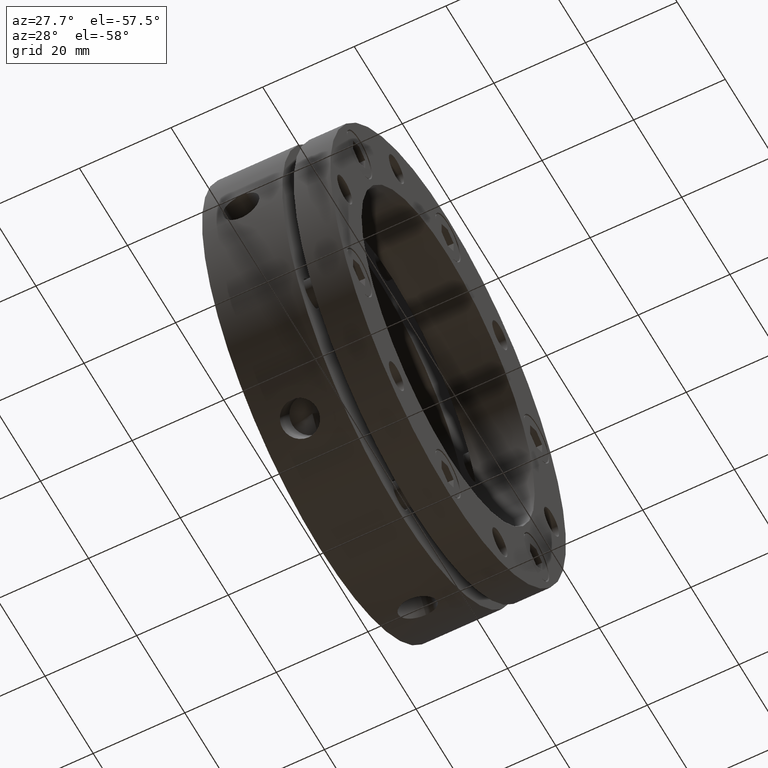
[diagram: clean part render]
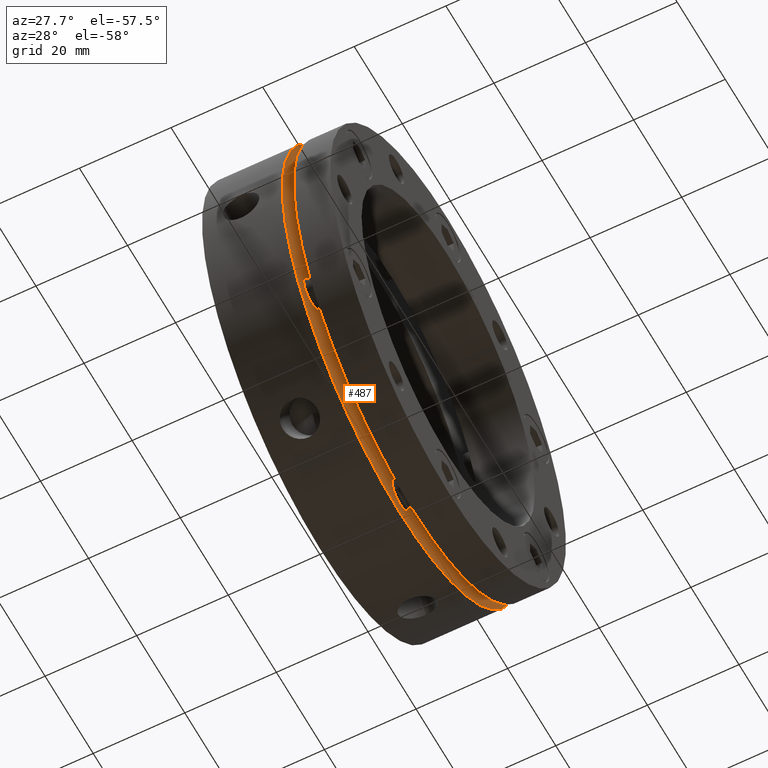
[diagram: same view with one face highlighted and labeled with its STEP entity id]
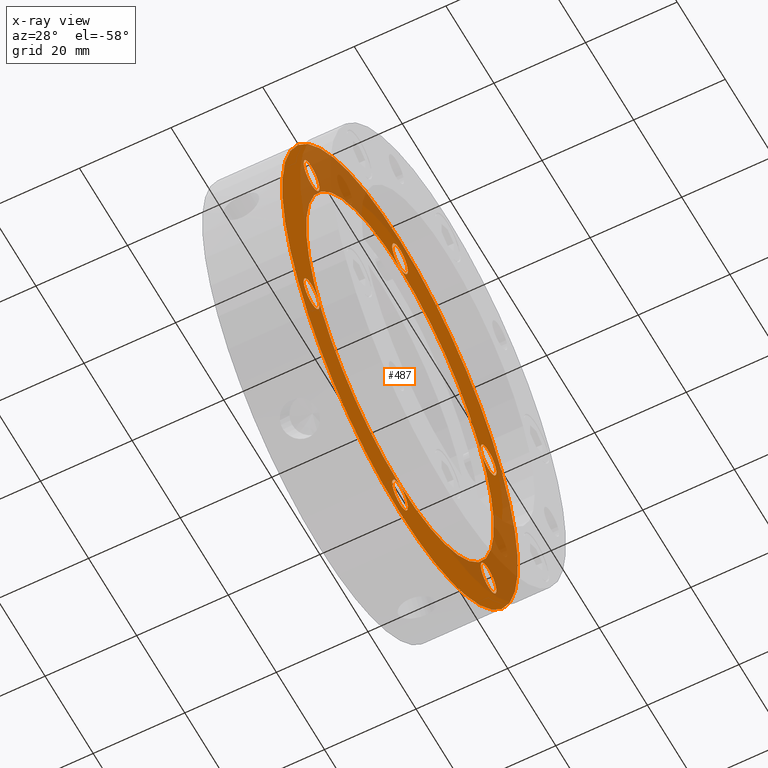
[diagram: x-ray of the same camera — body ghosted, the highlighted face saturated]
A machine part, auxiliary view. The second image highlights one B-rep face of the part: STEP entity #487.
The next image is the same camera in x-ray: the body ghosted, the highlighted face saturated — about 33% of this face is hidden behind the body in this view.
In plain terms, the highlighted planar face has unit normal (-1, 0, 0).
Its self-contained STEP definition (entity closure, byte-faithful):
#131 = VERTEX_POINT ( 'NONE', #2060 ) ;
#133 = VERTEX_POINT ( 'NONE', #2062 ) ;
#487 = ADVANCED_FACE ( 'NONE', ( #3110, #3118, #3114, #3112, #3116, #3119, #3120, #3121 ), #2402, .F. ) ;
#551 = EDGE_CURVE ( 'NONE', #816, #815, #3222, .T. ) ;
#552 = EDGE_CURVE ( 'NONE', #812, #811, #3223, .T. ) ;
#553 = EDGE_CURVE ( 'NONE', #808, #807, #3224, .T. ) ;
#554 = EDGE_CURVE ( 'NONE', #804, #803, #3225, .T. ) ;
#555 = EDGE_CURVE ( 'NONE', #800, #799, #3226, .T. ) ;
#556 = EDGE_CURVE ( 'NONE', #796, #795, #3227, .T. ) ;
#557 = EDGE_CURVE ( 'NONE', #792, #791, #3228, .T. ) ;
#571 = EDGE_CURVE ( 'NONE', #133, #131, #3242, .T. ) ;
#614 = EDGE_CURVE ( 'NONE', #131, #133, #3299, .T. ) ;
#679 = EDGE_CURVE ( 'NONE', #791, #792, #3401, .T. ) ;
#683 = EDGE_CURVE ( 'NONE', #795, #796, #3400, .T. ) ;
#687 = EDGE_CURVE ( 'NONE', #799, #800, #3407, .T. ) ;
#691 = EDGE_CURVE ( 'NONE', #803, #804, #3413, .T. ) ;
#695 = EDGE_CURVE ( 'NONE', #807, #808, #3419, .T. ) ;
#699 = EDGE_CURVE ( 'NONE', #811, #812, #3425, .T. ) ;
#703 = EDGE_CURVE ( 'NONE', #815, #816, #3431, .T. ) ;
#791 = VERTEX_POINT ( 'NONE', #4116 ) ;
#792 = VERTEX_POINT ( 'NONE', #4128 ) ;
#795 = VERTEX_POINT ( 'NONE', #4131 ) ;
#796 = VERTEX_POINT ( 'NONE', #4132 ) ;
#799 = VERTEX_POINT ( 'NONE', #4135 ) ;
#800 = VERTEX_POINT ( 'NONE', #4136 ) ;
#803 = VERTEX_POINT ( 'NONE', #4139 ) ;
#804 = VERTEX_POINT ( 'NONE', #4140 ) ;
#807 = VERTEX_POINT ( 'NONE', #4143 ) ;
#808 = VERTEX_POINT ( 'NONE', #4144 ) ;
#811 = VERTEX_POINT ( 'NONE', #4147 ) ;
#812 = VERTEX_POINT ( 'NONE', #4148 ) ;
#815 = VERTEX_POINT ( 'NONE', #4151 ) ;
#816 = VERTEX_POINT ( 'NONE', #4152 ) ;
#1307 = EDGE_LOOP ( 'NONE', ( #1615, #1616 ) ) ;
#1308 = EDGE_LOOP ( 'NONE', ( #1609, #1610 ) ) ;
#1320 = EDGE_LOOP ( 'NONE', ( #1611, #1612 ) ) ;
#1321 = EDGE_LOOP ( 'NONE', ( #1613, #1614 ) ) ;
#1328 = EDGE_LOOP ( 'NONE', ( #1617, #1618 ) ) ;
#1329 = EDGE_LOOP ( 'NONE', ( #1619, #1620 ) ) ;
#1330 = EDGE_LOOP ( 'NONE', ( #1621, #1622 ) ) ;
#1331 = EDGE_LOOP ( 'NONE', ( #1623, #1624 ) ) ;
#1609 = ORIENTED_EDGE ( 'NONE', *, *, #557, .F. ) ;
#1610 = ORIENTED_EDGE ( 'NONE', *, *, #679, .F. ) ;
#1611 = ORIENTED_EDGE ( 'NONE', *, *, #556, .F. ) ;
#1612 = ORIENTED_EDGE ( 'NONE', *, *, #683, .F. ) ;
#1613 = ORIENTED_EDGE ( 'NONE', *, *, #555, .F. ) ;
#1614 = ORIENTED_EDGE ( 'NONE', *, *, #687, .F. ) ;
#1615 = ORIENTED_EDGE ( 'NONE', *, *, #554, .F. ) ;
#1616 = ORIENTED_EDGE ( 'NONE', *, *, #691, .F. ) ;
#1617 = ORIENTED_EDGE ( 'NONE', *, *, #553, .F. ) ;
#1618 = ORIENTED_EDGE ( 'NONE', *, *, #695, .F. ) ;
#1619 = ORIENTED_EDGE ( 'NONE', *, *, #552, .F. ) ;
#1620 = ORIENTED_EDGE ( 'NONE', *, *, #699, .F. ) ;
#1621 = ORIENTED_EDGE ( 'NONE', *, *, #551, .F. ) ;
#1622 = ORIENTED_EDGE ( 'NONE', *, *, #703, .F. ) ;
#1623 = ORIENTED_EDGE ( 'NONE', *, *, #571, .F. ) ;
#1624 = ORIENTED_EDGE ( 'NONE', *, *, #614, .F. ) ;
#2060 = CARTESIAN_POINT ( 'NONE',  ( 17.49999999999999600, 6.000769315822030900E-015, 49.00000000000000000 ) ) ;
#2062 = CARTESIAN_POINT ( 'NONE',  ( 17.49999999999999600, 0.0000000000000000000, -49.00000000000000000 ) ) ;
#2398 = DIRECTION ( 'NONE',  ( -1.000000000000000000, 0.0000000000000000000, 0.0000000000000000000 ) ) ;
#2400 = CARTESIAN_POINT ( 'NONE',  ( 17.49999999999999600, 44.00000000000000000, 0.0000000000000000000 ) ) ;
#2402 = PLANE ( 'NONE',  #4614 ) ;
#2404 = DIRECTION ( 'NONE',  ( 0.0000000000000000000, 0.0000000000000000000, 1.000000000000000000 ) ) ;
#2595 = CARTESIAN_POINT ( 'NONE',  ( 17.49999999999999600, 36.80607966083869100, 21.24999999999998900 ) ) ;
#2596 = DIRECTION ( 'NONE',  ( 1.000000000000000000, 0.0000000000000000000, 0.0000000000000000000 ) ) ;
#2597 = DIRECTION ( 'NONE',  ( 0.0000000000000000000, 0.0000000000000000000, -1.000000000000000000 ) ) ;
#2598 = CARTESIAN_POINT ( 'NONE',  ( 17.49999999999999600, 36.80607966083865500, -21.25000000000003200 ) ) ;
#2599 = DIRECTION ( 'NONE',  ( 1.000000000000000000, 0.0000000000000000000, 0.0000000000000000000 ) ) ;
#2600 = DIRECTION ( 'NONE',  ( 0.0000000000000000000, 0.0000000000000000000, -1.000000000000000000 ) ) ;
#2601 = CARTESIAN_POINT ( 'NONE',  ( 17.49999999999999600, -6.661337999999999900E-015, -42.50000000000003600 ) ) ;
#2602 = DIRECTION ( 'NONE',  ( 1.000000000000000000, 0.0000000000000000000, 0.0000000000000000000 ) ) ;
#2603 = DIRECTION ( 'NONE',  ( 0.0000000000000000000, 0.0000000000000000000, -1.000000000000000000 ) ) ;
#2604 = CARTESIAN_POINT ( 'NONE',  ( 17.49999999999999600, -36.80607966083868400, -21.25000000000000700 ) ) ;
#2605 = DIRECTION ( 'NONE',  ( 1.000000000000000000, 0.0000000000000000000, 0.0000000000000000000 ) ) ;
#2606 = DIRECTION ( 'NONE',  ( 0.0000000000000000000, 0.0000000000000000000, -1.000000000000000000 ) ) ;
#2607 = CARTESIAN_POINT ( 'NONE',  ( 17.49999999999999600, -36.80607966083866200, 21.25000000000001800 ) ) ;
#2608 = DIRECTION ( 'NONE',  ( 1.000000000000000000, 0.0000000000000000000, 0.0000000000000000000 ) ) ;
#2609 = DIRECTION ( 'NONE',  ( 0.0000000000000000000, 0.0000000000000000000, -1.000000000000000000 ) ) ;
#2611 = CARTESIAN_POINT ( 'NONE',  ( 17.49999999999999600, 0.0000000000000000000, 42.50000000000002800 ) ) ;
#2612 = DIRECTION ( 'NONE',  ( 1.000000000000000000, 0.0000000000000000000, 0.0000000000000000000 ) ) ;
#2613 = DIRECTION ( 'NONE',  ( 0.0000000000000000000, 0.0000000000000000000, -1.000000000000000000 ) ) ;
#2615 = CARTESIAN_POINT ( 'NONE',  ( 17.49999999999999600, 0.0000000000000000000, 0.0000000000000000000 ) ) ;
#2616 = DIRECTION ( 'NONE',  ( 1.000000000000000000, -0.0000000000000000000, -0.0000000000000000000 ) ) ;
#2617 = DIRECTION ( 'NONE',  ( 0.0000000000000000000, 0.0000000000000000000, 1.000000000000000000 ) ) ;
#2659 = CARTESIAN_POINT ( 'NONE',  ( 17.49999999999999600, 0.0000000000000000000, 0.0000000000000000000 ) ) ;
#2660 = DIRECTION ( 'NONE',  ( -1.000000000000000000, -0.0000000000000000000, -0.0000000000000000000 ) ) ;
#2661 = DIRECTION ( 'NONE',  ( 0.0000000000000000000, 0.0000000000000000000, -1.000000000000000000 ) ) ;
#3110 = FACE_BOUND ( 'NONE', #1308, .T. ) ;
#3112 = FACE_BOUND ( 'NONE', #1307, .T. ) ;
#3114 = FACE_BOUND ( 'NONE', #1321, .T. ) ;
#3116 = FACE_BOUND ( 'NONE', #1328, .T. ) ;
#3118 = FACE_BOUND ( 'NONE', #1320, .T. ) ;
#3119 = FACE_BOUND ( 'NONE', #1329, .T. ) ;
#3120 = FACE_BOUND ( 'NONE', #1330, .T. ) ;
#3121 = FACE_OUTER_BOUND ( 'NONE', #1331, .T. ) ;
#3222 = CIRCLE ( 'NONE', #4674, 3.249999999999999600 ) ;
#3223 = CIRCLE ( 'NONE', #4675, 3.249999999999999600 ) ;
#3224 = CIRCLE ( 'NONE', #4676, 3.250000000000002700 ) ;
#3225 = CIRCLE ( 'NONE', #4677, 3.249999999999999600 ) ;
#3226 = CIRCLE ( 'NONE', #4678, 3.249999999999999600 ) ;
#3227 = CIRCLE ( 'NONE', #4679, 3.250000000000002700 ) ;
#3228 = CIRCLE ( 'NONE', #4680, 39.00000000000000700 ) ;
#3242 = CIRCLE ( 'NONE', #4694, 49.00000000000000000 ) ;
#3299 = CIRCLE ( 'NONE', #4705, 49.00000000000000000 ) ;
#3400 = CIRCLE ( 'NONE', #4729, 3.250000000000002700 ) ;
#3401 = CIRCLE ( 'NONE', #4727, 39.00000000000000700 ) ;
#3407 = CIRCLE ( 'NONE', #4731, 3.249999999999999600 ) ;
#3413 = CIRCLE ( 'NONE', #4733, 3.249999999999999600 ) ;
#3419 = CIRCLE ( 'NONE', #4735, 3.250000000000002700 ) ;
#3425 = CIRCLE ( 'NONE', #4737, 3.249999999999999600 ) ;
#3431 = CIRCLE ( 'NONE', #4739, 3.249999999999999600 ) ;
#3745 = CARTESIAN_POINT ( 'NONE',  ( 17.49999999999999600, 0.0000000000000000000, 0.0000000000000000000 ) ) ;
#3746 = DIRECTION ( 'NONE',  ( -1.000000000000000000, -0.0000000000000000000, -0.0000000000000000000 ) ) ;
#3747 = DIRECTION ( 'NONE',  ( 0.0000000000000000000, 0.0000000000000000000, -1.000000000000000000 ) ) ;
#3994 = CARTESIAN_POINT ( 'NONE',  ( 17.49999999999999600, 0.0000000000000000000, 0.0000000000000000000 ) ) ;
#3995 = DIRECTION ( 'NONE',  ( 1.000000000000000000, -0.0000000000000000000, -0.0000000000000000000 ) ) ;
#3996 = DIRECTION ( 'NONE',  ( 0.0000000000000000000, 0.0000000000000000000, 1.000000000000000000 ) ) ;
#4004 = CARTESIAN_POINT ( 'NONE',  ( 17.49999999999999600, 0.0000000000000000000, 42.50000000000002800 ) ) ;
#4005 = DIRECTION ( 'NONE',  ( 1.000000000000000000, 0.0000000000000000000, 0.0000000000000000000 ) ) ;
#4006 = DIRECTION ( 'NONE',  ( 0.0000000000000000000, 0.0000000000000000000, -1.000000000000000000 ) ) ;
#4014 = CARTESIAN_POINT ( 'NONE',  ( 17.49999999999999600, -36.80607966083866200, 21.25000000000001800 ) ) ;
#4015 = DIRECTION ( 'NONE',  ( 1.000000000000000000, 0.0000000000000000000, 0.0000000000000000000 ) ) ;
#4016 = DIRECTION ( 'NONE',  ( 0.0000000000000000000, 0.0000000000000000000, -1.000000000000000000 ) ) ;
#4024 = CARTESIAN_POINT ( 'NONE',  ( 17.49999999999999600, -36.80607966083868400, -21.25000000000000700 ) ) ;
#4025 = DIRECTION ( 'NONE',  ( 1.000000000000000000, 0.0000000000000000000, 0.0000000000000000000 ) ) ;
#4026 = DIRECTION ( 'NONE',  ( 0.0000000000000000000, 0.0000000000000000000, -1.000000000000000000 ) ) ;
#4034 = CARTESIAN_POINT ( 'NONE',  ( 17.49999999999999600, -6.661337999999999900E-015, -42.50000000000003600 ) ) ;
#4035 = DIRECTION ( 'NONE',  ( 1.000000000000000000, 0.0000000000000000000, 0.0000000000000000000 ) ) ;
#4036 = DIRECTION ( 'NONE',  ( 0.0000000000000000000, 0.0000000000000000000, -1.000000000000000000 ) ) ;
#4044 = CARTESIAN_POINT ( 'NONE',  ( 17.49999999999999600, 36.80607966083865500, -21.25000000000003200 ) ) ;
#4045 = DIRECTION ( 'NONE',  ( 1.000000000000000000, 0.0000000000000000000, 0.0000000000000000000 ) ) ;
#4046 = DIRECTION ( 'NONE',  ( 0.0000000000000000000, 0.0000000000000000000, -1.000000000000000000 ) ) ;
#4053 = CARTESIAN_POINT ( 'NONE',  ( 17.49999999999999600, 36.80607966083869100, 21.24999999999998900 ) ) ;
#4054 = DIRECTION ( 'NONE',  ( 1.000000000000000000, 0.0000000000000000000, 0.0000000000000000000 ) ) ;
#4055 = DIRECTION ( 'NONE',  ( 0.0000000000000000000, 0.0000000000000000000, -1.000000000000000000 ) ) ;
#4116 = CARTESIAN_POINT ( 'NONE',  ( 17.49999999999999600, 4.776122516674678700E-015, -39.00000000000000700 ) ) ;
#4128 = CARTESIAN_POINT ( 'NONE',  ( 17.49999999999999600, 0.0000000000000000000, 39.00000000000000700 ) ) ;
#4131 = CARTESIAN_POINT ( 'NONE',  ( 17.49999999999999600, 3.980102097228895300E-016, 45.75000000000003600 ) ) ;
#4132 = CARTESIAN_POINT ( 'NONE',  ( 17.49999999999999600, 0.0000000000000000000, 39.25000000000002800 ) ) ;
#4135 = CARTESIAN_POINT ( 'NONE',  ( 17.49999999999999600, -36.80607966083866200, 24.50000000000001800 ) ) ;
#4136 = CARTESIAN_POINT ( 'NONE',  ( 17.49999999999999600, -36.80607966083866200, 18.00000000000001800 ) ) ;
#4139 = CARTESIAN_POINT ( 'NONE',  ( 17.49999999999999600, -36.80607966083868400, -18.00000000000001100 ) ) ;
#4140 = CARTESIAN_POINT ( 'NONE',  ( 17.49999999999999600, -36.80607966083868400, -24.50000000000000700 ) ) ;
#4143 = CARTESIAN_POINT ( 'NONE',  ( 17.49999999999999600, -6.263327790277110600E-015, -39.25000000000003600 ) ) ;
#4144 = CARTESIAN_POINT ( 'NONE',  ( 17.49999999999999600, -6.661337999999999900E-015, -45.75000000000004300 ) ) ;
#4147 = CARTESIAN_POINT ( 'NONE',  ( 17.49999999999999600, 36.80607966083865500, -18.00000000000003200 ) ) ;
#4148 = CARTESIAN_POINT ( 'NONE',  ( 17.49999999999999600, 36.80607966083865500, -24.50000000000003200 ) ) ;
#4151 = CARTESIAN_POINT ( 'NONE',  ( 17.49999999999999600, 36.80607966083869100, 24.49999999999998600 ) ) ;
#4152 = CARTESIAN_POINT ( 'NONE',  ( 17.49999999999999600, 36.80607966083869100, 17.99999999999998900 ) ) ;
#4614 = AXIS2_PLACEMENT_3D ( 'NONE', #2400, #2398, #2404 ) ;
#4674 = AXIS2_PLACEMENT_3D ( 'NONE', #2595, #2596, #2597 ) ;
#4675 = AXIS2_PLACEMENT_3D ( 'NONE', #2598, #2599, #2600 ) ;
#4676 = AXIS2_PLACEMENT_3D ( 'NONE', #2601, #2602, #2603 ) ;
#4677 = AXIS2_PLACEMENT_3D ( 'NONE', #2604, #2605, #2606 ) ;
#4678 = AXIS2_PLACEMENT_3D ( 'NONE', #2607, #2608, #2609 ) ;
#4679 = AXIS2_PLACEMENT_3D ( 'NONE', #2611, #2612, #2613 ) ;
#4680 = AXIS2_PLACEMENT_3D ( 'NONE', #2615, #2616, #2617 ) ;
#4694 = AXIS2_PLACEMENT_3D ( 'NONE', #2659, #2660, #2661 ) ;
#4705 = AXIS2_PLACEMENT_3D ( 'NONE', #3745, #3746, #3747 ) ;
#4727 = AXIS2_PLACEMENT_3D ( 'NONE', #3994, #3995, #3996 ) ;
#4729 = AXIS2_PLACEMENT_3D ( 'NONE', #4004, #4005, #4006 ) ;
#4731 = AXIS2_PLACEMENT_3D ( 'NONE', #4014, #4015, #4016 ) ;
#4733 = AXIS2_PLACEMENT_3D ( 'NONE', #4024, #4025, #4026 ) ;
#4735 = AXIS2_PLACEMENT_3D ( 'NONE', #4034, #4035, #4036 ) ;
#4737 = AXIS2_PLACEMENT_3D ( 'NONE', #4044, #4045, #4046 ) ;
#4739 = AXIS2_PLACEMENT_3D ( 'NONE', #4053, #4054, #4055 ) ;